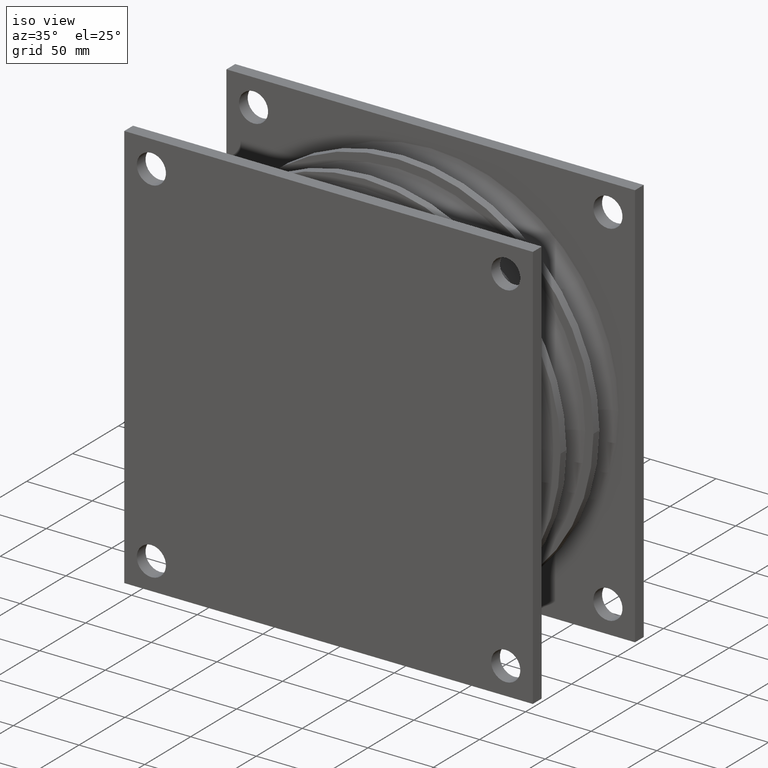
[diagram: clean part render]
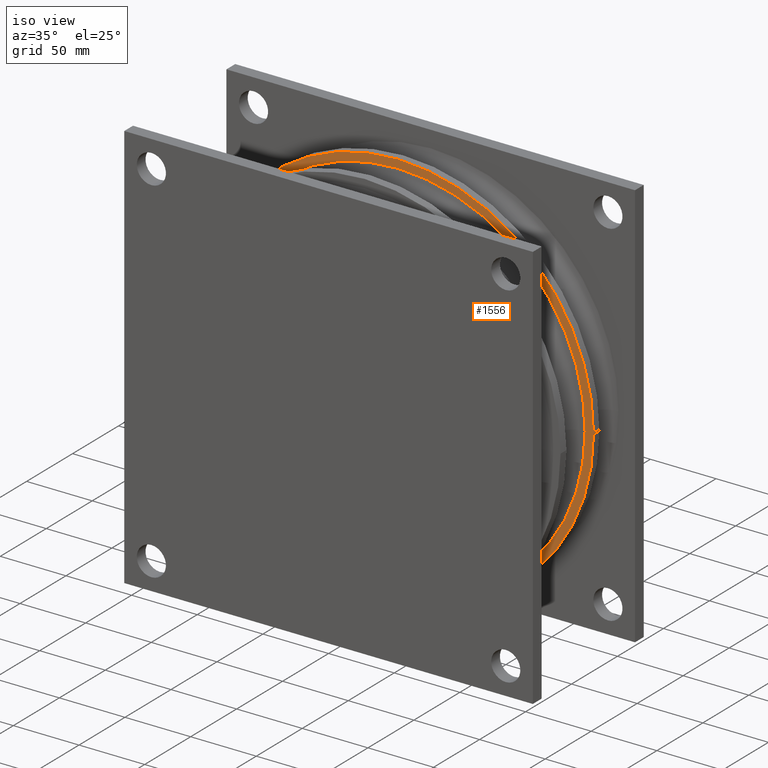
[diagram: same view with one face highlighted and labeled with its STEP entity id]
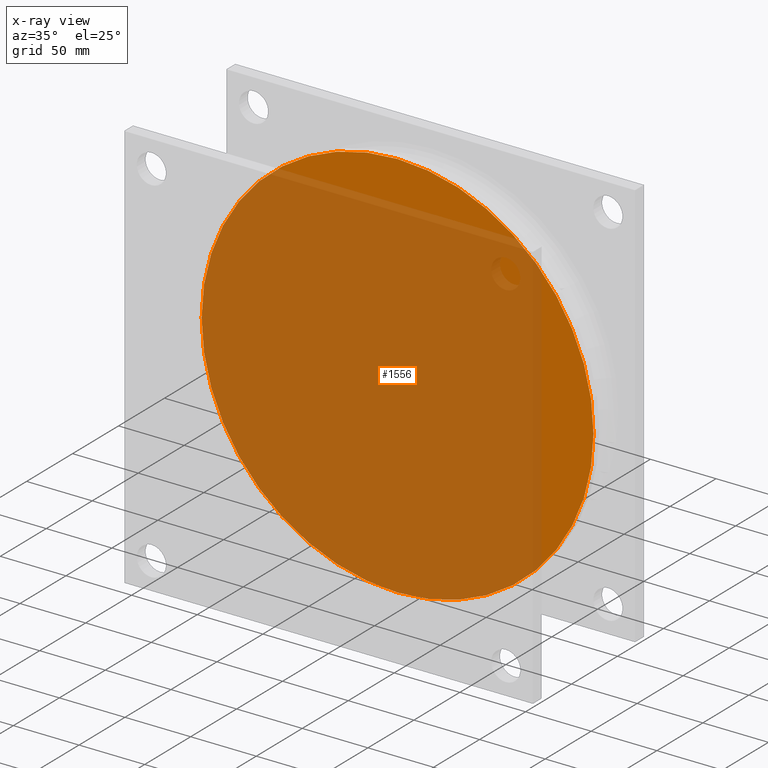
[diagram: x-ray of the same camera — body ghosted, the highlighted face saturated]
A machine part, iso view. The second image highlights one B-rep face of the part: STEP entity #1556.
The next image is the same camera in x-ray: the body ghosted, the highlighted face saturated — about 86% of this face is hidden behind the body in this view.
In plain terms, the highlighted planar face has unit normal (0, 1, -0).
Its self-contained STEP definition (entity closure, byte-faithful):
#127 = DIRECTION ( 'NONE',  ( -1.000000000000000000, 1.010333609296569200E-017, 0.0000000000000000000 ) ) ;
#179 = CIRCLE ( 'NONE', #498, 5.875000000000000000 ) ;
#232 = CARTESIAN_POINT ( 'NONE',  ( 5.875000000000000000, 2.955000000000000500, 7.194799944990700800E-016 ) ) ;
#261 = ORIENTED_EDGE ( 'NONE', *, *, #337, .F. ) ;
#337 = EDGE_CURVE ( 'NONE', #449, #1046, #522, .T. ) ;
#409 = EDGE_CURVE ( 'NONE', #1046, #449, #179, .T. ) ;
#413 = EDGE_LOOP ( 'NONE', ( #261, #1276 ) ) ;
#427 = CARTESIAN_POINT ( 'NONE',  ( -1.434673725201127300E-017, 2.955000000000000500, 0.0000000000000000000 ) ) ;
#449 = VERTEX_POINT ( 'NONE', #1482 ) ;
#498 = AXIS2_PLACEMENT_3D ( 'NONE', #427, #557, #1037 ) ;
#522 = CIRCLE ( 'NONE', #887, 5.875000000000000000 ) ;
#557 = DIRECTION ( 'NONE',  ( 1.010333609296569200E-017, 1.000000000000000000, -0.0000000000000000000 ) ) ;
#754 = FACE_OUTER_BOUND ( 'NONE', #413, .T. ) ;
#887 = AXIS2_PLACEMENT_3D ( 'NONE', #1525, #1535, #1031 ) ;
#932 = AXIS2_PLACEMENT_3D ( 'NONE', #1473, #1351, #127 ) ;
#1031 = DIRECTION ( 'NONE',  ( -1.000000000000000000, 0.0000000000000000000, 0.0000000000000000000 ) ) ;
#1037 = DIRECTION ( 'NONE',  ( -1.000000000000000000, 0.0000000000000000000, 0.0000000000000000000 ) ) ;
#1046 = VERTEX_POINT ( 'NONE', #232 ) ;
#1109 = PLANE ( 'NONE',  #932 ) ;
#1276 = ORIENTED_EDGE ( 'NONE', *, *, #409, .F. ) ;
#1351 = DIRECTION ( 'NONE',  ( 1.010333609296569200E-017, 1.000000000000000000, -0.0000000000000000000 ) ) ;
#1473 = CARTESIAN_POINT ( 'NONE',  ( 9.735942053221452500E-017, 2.955000000000000500, 0.0000000000000000000 ) ) ;
#1482 = CARTESIAN_POINT ( 'NONE',  ( -5.875000000000000000, 2.955000000000000500, 0.0000000000000000000 ) ) ;
#1525 = CARTESIAN_POINT ( 'NONE',  ( -1.434673725201127300E-017, 2.955000000000000500, 0.0000000000000000000 ) ) ;
#1535 = DIRECTION ( 'NONE',  ( 1.010333609296569200E-017, 1.000000000000000000, -0.0000000000000000000 ) ) ;
#1556 = ADVANCED_FACE ( 'NONE', ( #754 ), #1109, .F. ) ;